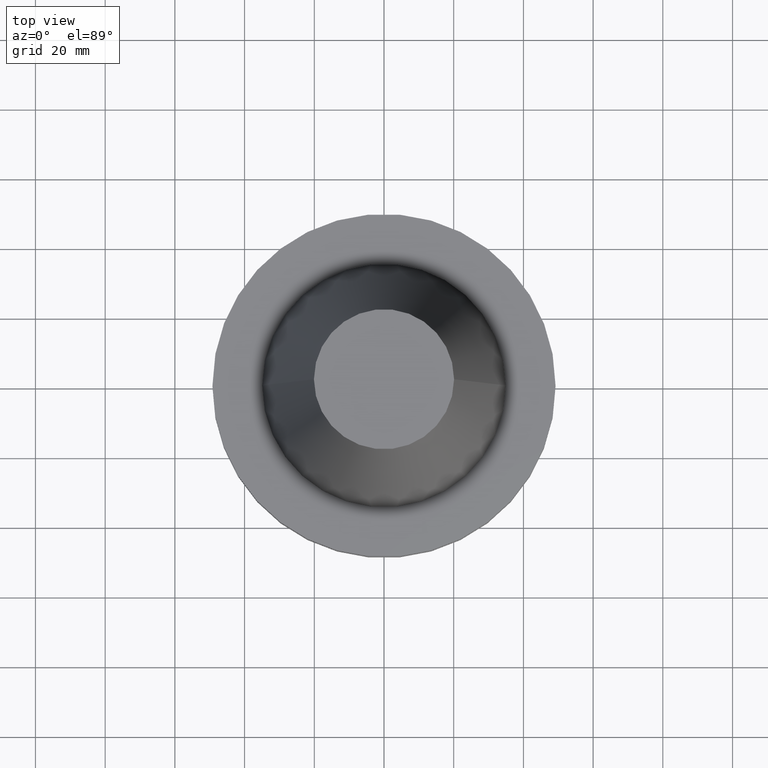
[diagram: clean part render]
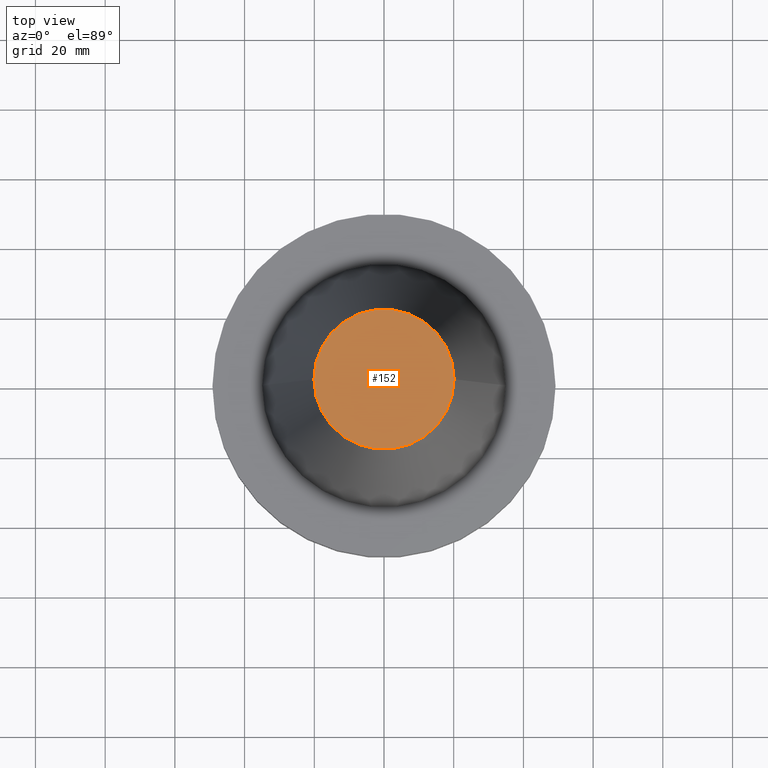
[diagram: same view with one face highlighted and labeled with its STEP entity id]
A machine part, top view. The second image highlights one B-rep face of the part: STEP entity #152.
In plain terms, the highlighted planar face has unit normal (0, 0, -1).
Its self-contained STEP definition (entity closure, byte-faithful):
#15 = DIRECTION ( 'NONE',  ( -1.000000000000000000, 0.000000000000000000, -0.000000000000000000 ) ) ;
#105 = CIRCLE ( 'NONE', #506, 20.10819343178871321 ) ;
#113 = EDGE_CURVE ( 'NONE', #477, #471, #862, .T. ) ;
#152 = ADVANCED_FACE ( 'NONE', ( #694 ), #607, .F. ) ;
#360 = ORIENTED_EDGE ( 'NONE', *, *, #113, .T. ) ;
#386 = EDGE_CURVE ( 'NONE', #471, #477, #105, .T. ) ;
#392 = AXIS2_PLACEMENT_3D ( 'NONE', #448, #855, #780 ) ;
#407 = CARTESIAN_POINT ( 'NONE',  ( -20.10819343178871321, 0.000000000000000000, 101.5999999999999801 ) ) ;
#448 = CARTESIAN_POINT ( 'NONE',  ( 0.000000000000000000, 0.000000000000000000, 101.5999999999999801 ) ) ;
#471 = VERTEX_POINT ( 'NONE', #587 ) ;
#477 = VERTEX_POINT ( 'NONE', #407 ) ;
#506 = AXIS2_PLACEMENT_3D ( 'NONE', #567, #895, #902 ) ;
#567 = CARTESIAN_POINT ( 'NONE',  ( 0.000000000000000000, 0.000000000000000000, 101.5999999999999801 ) ) ;
#578 = EDGE_LOOP ( 'NONE', ( #360, #779 ) ) ;
#587 = CARTESIAN_POINT ( 'NONE',  ( 20.10819343178871321, 3.369811209154858606E-15, 101.5999999999999801 ) ) ;
#607 = PLANE ( 'NONE',  #808 ) ;
#694 = FACE_OUTER_BOUND ( 'NONE', #578, .T. ) ;
#757 = CARTESIAN_POINT ( 'NONE',  ( 0.000000000000000000, 20.10819343178871321, 101.5999999999999943 ) ) ;
#762 = DIRECTION ( 'NONE',  ( 0.000000000000000000, 0.000000000000000000, -1.000000000000000000 ) ) ;
#779 = ORIENTED_EDGE ( 'NONE', *, *, #386, .T. ) ;
#780 = DIRECTION ( 'NONE',  ( 1.000000000000000000, 0.000000000000000000, 0.000000000000000000 ) ) ;
#808 = AXIS2_PLACEMENT_3D ( 'NONE', #757, #762, #15 ) ;
#855 = DIRECTION ( 'NONE',  ( -0.000000000000000000, -0.000000000000000000, 1.000000000000000000 ) ) ;
#862 = CIRCLE ( 'NONE', #392, 20.10819343178871321 ) ;
#895 = DIRECTION ( 'NONE',  ( -0.000000000000000000, -0.000000000000000000, 1.000000000000000000 ) ) ;
#902 = DIRECTION ( 'NONE',  ( 1.000000000000000000, 0.000000000000000000, 0.000000000000000000 ) ) ;